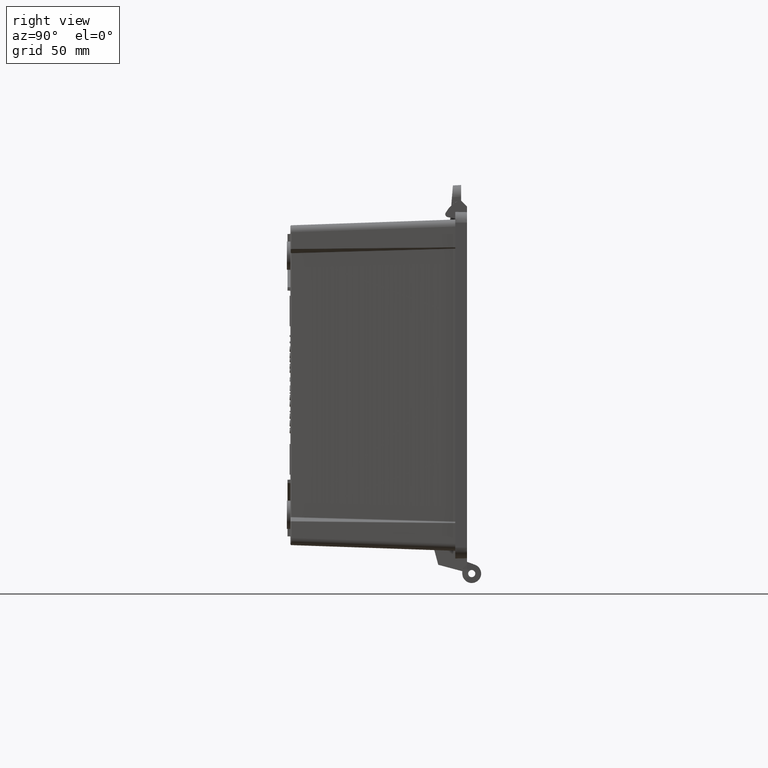
[diagram: clean part render]
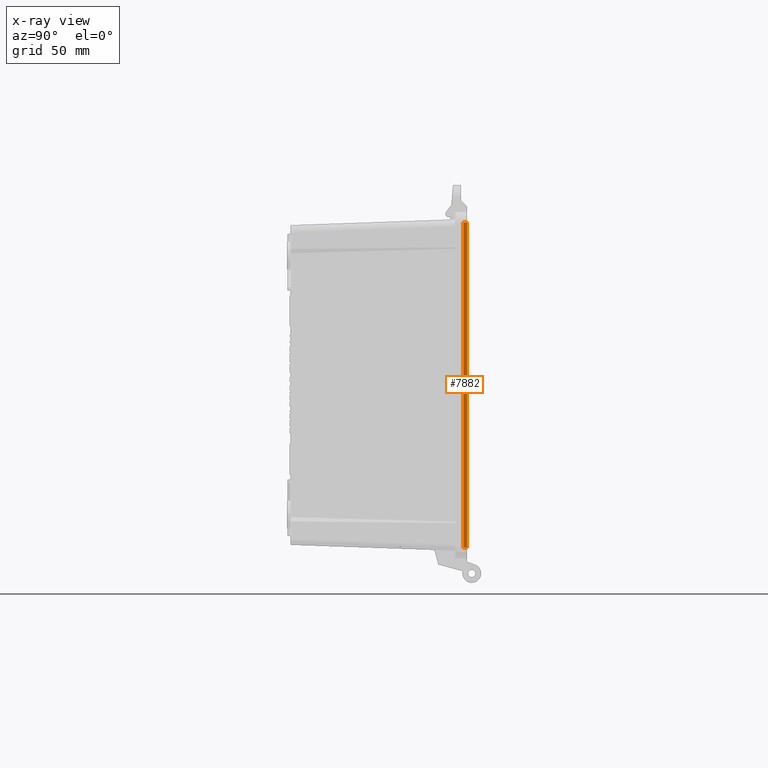
[diagram: x-ray — body ghosted, one internal face saturated and labeled with its STEP entity id]
A machine part, right view, then the same camera in x-ray: the body is ghosted and one INTERNAL B-rep face — a face not visible from any outside direction — is saturated and labeled: STEP entity #7882.
In plain terms, the highlighted planar face has unit normal (0.9986, -0.0523, 0).
Its self-contained STEP definition (entity closure, byte-faithful):
#946 = VERTEX_POINT ( 'NONE', #47773 ) ;
#947 = VERTEX_POINT ( 'NONE', #47774 ) ;
#2163 = VERTEX_POINT ( 'NONE', #19156 ) ;
#2167 = VERTEX_POINT ( 'NONE', #19158 ) ;
#5010 = EDGE_CURVE ( 'NONE', #946, #947, #22714, .T. ) ;
#6850 = ORIENTED_EDGE ( 'NONE', *, *, #8001, .T. ) ;
#6852 = ORIENTED_EDGE ( 'NONE', *, *, #7999, .F. ) ;
#6853 = ORIENTED_EDGE ( 'NONE', *, *, #5010, .F. ) ;
#6856 = ORIENTED_EDGE ( 'NONE', *, *, #7184, .T. ) ;
#7184 = EDGE_CURVE ( 'NONE', #2167, #2163, #33260, .T. ) ;
#7882 = ADVANCED_FACE ( 'NONE', ( #33620 ), #37201, .F. ) ;
#7999 = EDGE_CURVE ( 'NONE', #947, #2163, #33670, .T. ) ;
#8001 = EDGE_CURVE ( 'NONE', #946, #2167, #33671, .T. ) ;
#19156 = CARTESIAN_POINT ( 'NONE',  ( 119.5000000000000300, 0.0000000000000000000, -68.99999999999994300 ) ) ;
#19158 = CARTESIAN_POINT ( 'NONE',  ( 119.5000000000000300, 0.0000000000000000000, 68.99999999999998600 ) ) ;
#19589 = CARTESIAN_POINT ( 'NONE',  ( 119.4213883310754600, -1.500000000000000000, 68.99999999999998600 ) ) ;
#19590 = DIRECTION ( 'NONE',  ( 0.0000000000000000000, 0.0000000000000000000, -1.000000000000000000 ) ) ;
#22714 = LINE ( 'NONE', #19589, #46367 ) ;
#32147 = VECTOR ( 'NONE', #32918, 1000.000000000000000 ) ;
#32917 = CARTESIAN_POINT ( 'NONE',  ( 119.5000000000000300, 0.0000000000000000000, 68.99999999999998600 ) ) ;
#32918 = DIRECTION ( 'NONE',  ( 0.0000000000000000000, 0.0000000000000000000, -1.000000000000000000 ) ) ;
#33260 = LINE ( 'NONE', #32917, #32147 ) ;
#33620 = FACE_OUTER_BOUND ( 'NONE', #47035, .T. ) ;
#33670 = LINE ( 'NONE', #38545, #36170 ) ;
#33671 = LINE ( 'NONE', #38547, #36171 ) ;
#36120 = AXIS2_PLACEMENT_3D ( 'NONE', #37202, #37203, #37204 ) ;
#36170 = VECTOR ( 'NONE', #38546, 1000.000000000000000 ) ;
#36171 = VECTOR ( 'NONE', #38548, 1000.000000000000000 ) ;
#37201 = PLANE ( 'NONE',  #36120 ) ;
#37202 = CARTESIAN_POINT ( 'NONE',  ( 119.5000000000000300, 0.0000000000000000000, 68.99999999999998600 ) ) ;
#37203 = DIRECTION ( 'NONE',  ( 0.9986295347545739400, -0.05233595624294395300, 0.0000000000000000000 ) ) ;
#37204 = DIRECTION ( 'NONE',  ( 0.05233595624294395300, 0.9986295347545739400, 0.0000000000000000000 ) ) ;
#38545 = CARTESIAN_POINT ( 'NONE',  ( 119.5000000000000300, 0.0000000000000000000, -68.99999999999995700 ) ) ;
#38546 = DIRECTION ( 'NONE',  ( 0.05233595624294395300, 0.9986295347545739400, -0.0000000000000000000 ) ) ;
#38547 = CARTESIAN_POINT ( 'NONE',  ( 119.5000000000000300, 0.0000000000000000000, 68.99999999999998600 ) ) ;
#38548 = DIRECTION ( 'NONE',  ( 0.05233595624294395300, 0.9986295347545739400, -0.0000000000000000000 ) ) ;
#46367 = VECTOR ( 'NONE', #19590, 1000.000000000000000 ) ;
#47035 = EDGE_LOOP ( 'NONE', ( #6852, #6853, #6850, #6856 ) ) ;
#47773 = CARTESIAN_POINT ( 'NONE',  ( 119.4213883310754600, -1.500000000000000000, 68.99999999999998600 ) ) ;
#47774 = CARTESIAN_POINT ( 'NONE',  ( 119.4213883310754600, -1.500000000000000000, -68.99999999999995700 ) ) ;